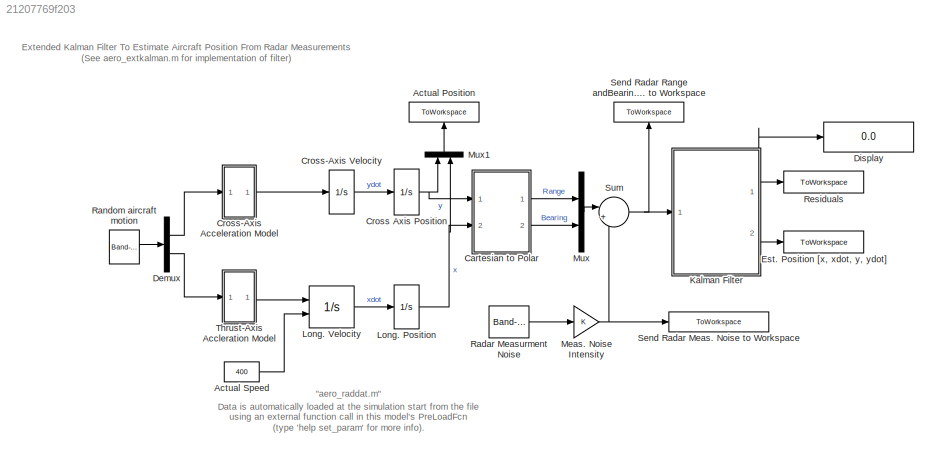
MODEL slx_21207769f203
KIND model
CONFIG AbsTol = 1e-6
CONFIG EnableMultiTasking = off
CONFIG FixedStep = 0.1
CONFIG MaxStep = 0.1
CONFIG MinStep = auto
CONFIG RelTol = 1e-3
CONFIG SampleTimeConstraint = Unconstrained
CONFIG Solver = ode5
CONFIG SolverName = ode5
CONFIG StartTime = 0.0
CONFIG StopFcn = aero_radplot;
CONFIG StopTime = 100
BLOCK [ToWorkspace] Actual Position
  MaxDataPoints = inf
  Ports = [1]
  VariableName = XYCoords
BLOCK [Constant] Actual Speed
  Value = 400
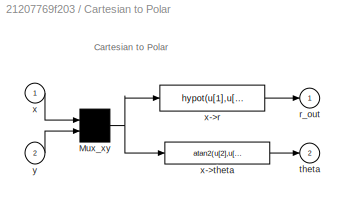
BLOCK [SubSystem] Cartesian to Polar
  Ports = [2, 2]
  RequestExecContextInheritance = off
  ShowPortLabels = none
BLOCK [Mux] Cartesian to Polar/Mux_xy
  Inputs = 2
  Ports = [2, 1]
BLOCK [Outport] Cartesian to Polar/r_out
  IconDisplay = Port number
BLOCK [Outport] Cartesian to Polar/theta
  IconDisplay = Port number
  Port = 2
BLOCK [Inport] Cartesian to Polar/x
  IconDisplay = Port number
BLOCK [Fcn] Cartesian to Polar/x->r
  Expr = hypot(u[1],u[2])
BLOCK [Fcn] Cartesian to Polar/x->theta
  Expr = atan2(u[2],u[1])
BLOCK [Inport] Cartesian to Polar/y
  IconDisplay = Port number
  Port = 2
BLOCK [Integrator] Cross Axis Position 
  Ports = [1, 1]
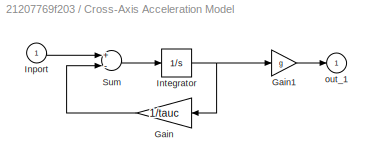
BLOCK [SubSystem] Cross-Axis Acceleration Model
  Ports = [1, 1]
  RequestExecContextInheritance = off
  ShowPortLabels = none
BLOCK [Gain] Cross-Axis Acceleration Model/Gain
  Gain = 1/tauc
BLOCK [Gain] Cross-Axis Acceleration Model/Gain1
  Gain = g
BLOCK [Inport] Cross-Axis Acceleration Model/Inport
  IconDisplay = Port number
BLOCK [Integrator] Cross-Axis Acceleration Model/Integrator
  Ports = [1, 1]
BLOCK [Sum] Cross-Axis Acceleration Model/Sum
  Inputs = +-
  Ports = [2, 1]
BLOCK [Outport] Cross-Axis Acceleration Model/out_1
  IconDisplay = Port number
BLOCK [Integrator] Cross-Axis Velocity
  Ports = [1, 1]
BLOCK [Demux] Demux
  Outputs = 2
  Ports = [1, 2]
BLOCK [Display] Display
  Decimation = 1
  Ports = [1]
BLOCK [ToWorkspace] Est. Position [x, xdot, y, ydot]
  MaxDataPoints = inf
  Ports = [1]
  SampleTime = -1
  VariableName = X_hat
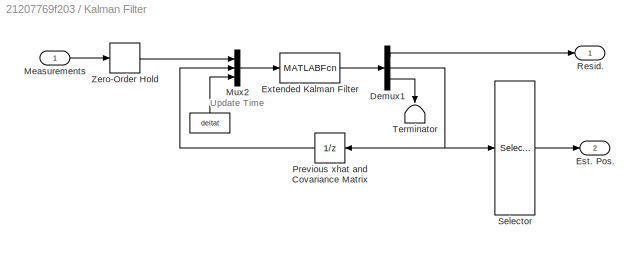
BLOCK [SubSystem] Kalman Filter
  Ports = [1, 2]
  RequestExecContextInheritance = off
BLOCK [Constant] Kalman Filter/ 
  Value = deltat
BLOCK [Demux] Kalman Filter/Demux1
  Outputs = [2 20 1]
  Ports = [1, 3]
BLOCK [Outport] Kalman Filter/Est. Pos.
  IconDisplay = Port number
  Port = 2
BLOCK [MATLABFcn] Kalman Filter/Extended Kalman Filter
  MATLABFcn = aero_extkalman
  OutputDimensions = 23
  Ports = [1, 1]
BLOCK [Inport] Kalman Filter/Measurements
  IconDisplay = Port number
BLOCK [Mux] Kalman Filter/Mux2
  DisplayOption = bar
  Inputs = 3
  Ports = [3, 1]
BLOCK [UnitDelay] Kalman Filter/Previous xhat and Covariance Matrix
  InitialCondition = [0.001; 0.01; 0.001; 400; zeros(16,1)]
  SampleTime = deltat
BLOCK [Outport] Kalman Filter/Resid.
  IconDisplay = Port number
BLOCK [Selector] Kalman Filter/Selector
  IndexOptions = Index vector (dialog)
  Indices = [1:4]
  InputPortWidth = 20
  OutputSizes = 1
  Ports = [1, 1]
BLOCK [Terminator] Kalman Filter/Terminator
BLOCK [ZeroOrderHold] Kalman Filter/Zero-Order Hold
  SampleTime = deltat
BLOCK [Integrator] Long. Position
  Ports = [1, 1]
BLOCK [Integrator] Long. Velocity
  InitialConditionSource = external
  Ports = [2, 1]
BLOCK [Gain] Meas. Noise Intensity
BLOCK [Mux] Mux
  DisplayOption = bar
  Inputs = 2
  Ports = [2, 1]
BLOCK [Mux] Mux1
  DisplayOption = bar
  Inputs = 2
  Ports = [2, 1]
BLOCK [Reference] Radar Measurment Noise  REF=simulink/Sources/Band-Limited
White Noise
  Ports = [0, 1]
  SourceBlock = simulink/Sources/Band-Limited\nWhite Noise
  SourceProductBaseCode = SL
  SourceProductName = Simulink
  SourceType = Band-Limited White Noise.
BLOCK [Reference] Random aircraft motion  REF=simulink/Sources/Band-Limited
White Noise
  Ports = [0, 1]
  SourceBlock = simulink/Sources/Band-Limited\nWhite Noise
  SourceProductBaseCode = SL
  SourceProductName = Simulink
  SourceType = Band-Limited White Noise.
BLOCK [ToWorkspace] Residuals
  MaxDataPoints = inf
  Ports = [1]
  SampleTime = -1
  VariableName = residual
BLOCK [ToWorkspace] Send Radar Meas. Noise to Workspace
  MaxDataPoints = inf
  Ports = [1]
  VariableName = Measurement_noise
BLOCK [ToWorkspace] Send Radar Range andBearing Angle Meas. to Workspace
  MaxDataPoints = inf
  Ports = [1]
  SampleTime = -1
  VariableName = PolarCoords
BLOCK [Sum] Sum
  IconShape = round
  Inputs = |++
  Ports = [2, 1]
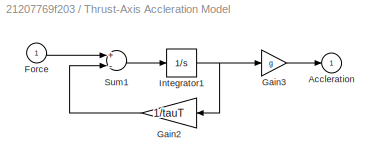
BLOCK [SubSystem] Thrust-Axis Accleration Model
  Ports = [1, 1]
  RequestExecContextInheritance = off
  ShowPortLabels = none
BLOCK [Outport] Thrust-Axis Accleration Model/Accleration
  IconDisplay = Port number
BLOCK [Inport] Thrust-Axis Accleration Model/Force
  IconDisplay = Port number
BLOCK [Gain] Thrust-Axis Accleration Model/Gain2
  Gain = 1/tauT
BLOCK [Gain] Thrust-Axis Accleration Model/Gain3
  Gain = g
BLOCK [Integrator] Thrust-Axis Accleration Model/Integrator1
  Ports = [1, 1]
BLOCK [Sum] Thrust-Axis Accleration Model/Sum1
  Inputs = +-
  Ports = [2, 1]
ANNOTATION (root): Data is automatically loaded at the simulation start from the file "aero_raddat.m" using an external function call in this model's PreLoadFcn (type 'help set_param' for more info).
ANNOTATION (root): Extended Kalman Filter To Estimate Aircraft Position From Radar Measurements (See aero_extkalman.m for implementation of filter)
ANNOTATION Cartesian to Polar: Cartesian to Polar
ANNOTATION Kalman Filter: Update Time
LINE Actual Speed:1 -> Long. Velocity:2
NET Cartesian to Polar/Mux_xy:1 -> Cartesian to Polar/x->r:1, Cartesian to Polar/x->theta:1
LINE Cartesian to Polar/x->r:1 -> Cartesian to Polar/r_out:1
LINE Cartesian to Polar/x->theta:1 -> Cartesian to Polar/theta:1
LINE Cartesian to Polar/x:1 -> Cartesian to Polar/Mux_xy:1
LINE Cartesian to Polar/y:1 -> Cartesian to Polar/Mux_xy:2
LINE Cartesian to Polar:1 -> Mux:1
LINE Cartesian to Polar:2 -> Mux:2
NET Cross Axis Position :1 -> Cartesian to Polar:1, Mux1:1
LINE Cross-Axis Acceleration Model/Gain1:1 -> Cross-Axis Acceleration Model/out_1:1
LINE Cross-Axis Acceleration Model/Gain:1 -> Cross-Axis Acceleration Model/Sum:2
LINE Cross-Axis Acceleration Model/Inport:1 -> Cross-Axis Acceleration Model/Sum:1
NET Cross-Axis Acceleration Model/Integrator:1 -> Cross-Axis Acceleration Model/Gain1:1, Cross-Axis Acceleration Model/Gain:1
LINE Cross-Axis Acceleration Model/Sum:1 -> Cross-Axis Acceleration Model/Integrator:1
LINE Cross-Axis Acceleration Model:1 -> Cross-Axis Velocity:1
LINE Cross-Axis Velocity:1 -> Cross Axis Position :1
LINE Demux:1 -> Cross-Axis Acceleration Model:1
LINE Demux:2 -> Thrust-Axis Accleration Model:1
LINE Kalman Filter/ :1 -> Kalman Filter/Mux2:3
LINE Kalman Filter/Demux1:1 -> Kalman Filter/Resid.:1
NET Kalman Filter/Demux1:2 -> Kalman Filter/Previous xhat and Covariance Matrix:1, Kalman Filter/Selector:1
LINE Kalman Filter/Demux1:3 -> Kalman Filter/Terminator:1
LINE Kalman Filter/Extended Kalman Filter:1 -> Kalman Filter/Demux1:1
LINE Kalman Filter/Measurements:1 -> Kalman Filter/Zero-Order Hold:1
LINE Kalman Filter/Mux2:1 -> Kalman Filter/Extended Kalman Filter:1
LINE Kalman Filter/Previous xhat and Covariance Matrix:1 -> Kalman Filter/Mux2:2
LINE Kalman Filter/Selector:1 -> Kalman Filter/Est. Pos.:1
LINE Kalman Filter/Zero-Order Hold:1 -> Kalman Filter/Mux2:1
LINE Kalman Filter:1 -> Residuals:1
NET Kalman Filter:2 -> Display:1, Est. Position [x, xdot, y, ydot]:1
NET Long. Position:1 -> Cartesian to Polar:2, Mux1:2
LINE Long. Velocity:1 -> Long. Position:1
NET Meas. Noise Intensity:1 -> Send Radar Meas. Noise to Workspace:1, Sum:2
LINE Mux1:1 -> Actual Position:1
LINE Mux:1 -> Sum:1
LINE Radar Measurment Noise:1 -> Meas. Noise Intensity:1
LINE Random aircraft motion:1 -> Demux:1
NET Sum:1 -> Kalman Filter:1, Send Radar Range andBearing Angle Meas. to Workspace:1
LINE Thrust-Axis Accleration Model/Force:1 -> Thrust-Axis Accleration Model/Sum1:1
LINE Thrust-Axis Accleration Model/Gain2:1 -> Thrust-Axis Accleration Model/Sum1:2
LINE Thrust-Axis Accleration Model/Gain3:1 -> Thrust-Axis Accleration Model/Accleration:1
NET Thrust-Axis Accleration Model/Integrator1:1 -> Thrust-Axis Accleration Model/Gain2:1, Thrust-Axis Accleration Model/Gain3:1
LINE Thrust-Axis Accleration Model/Sum1:1 -> Thrust-Axis Accleration Model/Integrator1:1
LINE Thrust-Axis Accleration Model:1 -> Long. Velocity:1
note: NET lines group one-source signal fan-out (src -> all destinations, sorted); 1:1 wires keep LINE
